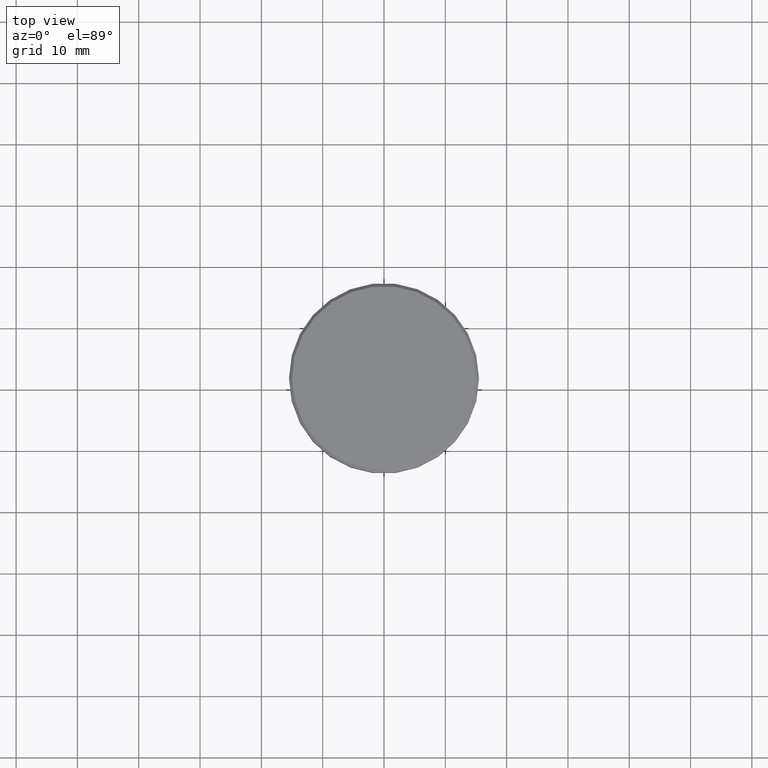
[diagram: clean part render]
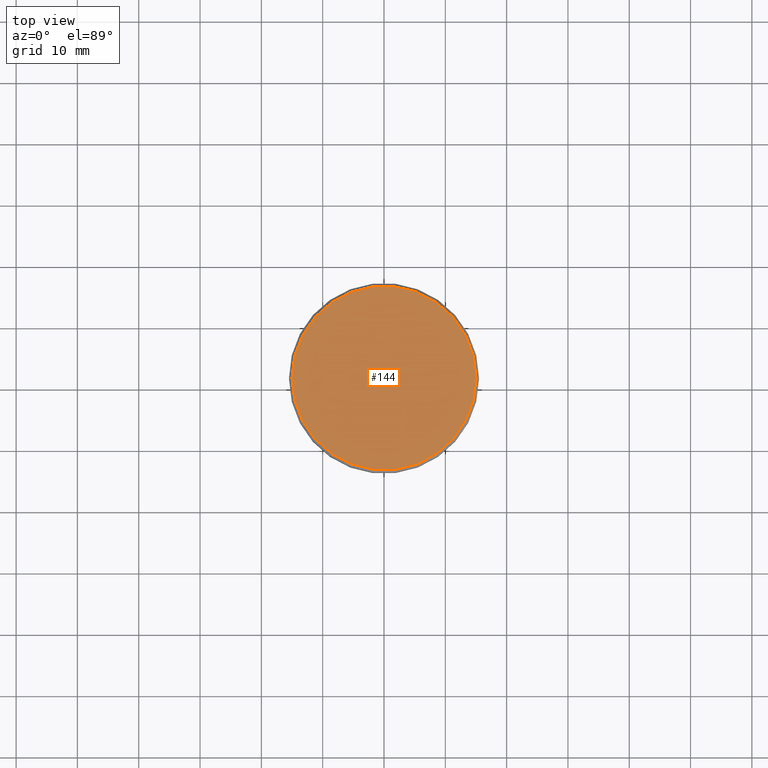
[diagram: same view with one face highlighted and labeled with its STEP entity id]
A machine part, top view. The second image highlights one B-rep face of the part: STEP entity #144.
In plain terms, the highlighted planar face has unit normal (0, -0, 1).
Its self-contained STEP definition (entity closure, byte-faithful):
#17 = EDGE_LOOP ( 'NONE', ( #613, #942 ) ) ;
#68 = EDGE_CURVE ( 'NONE', #198, #879, #966, .T. ) ;
#82 = DIRECTION ( 'NONE',  ( 1.000000000000000000, 0.000000000000000000, 0.000000000000000000 ) ) ;
#144 = ADVANCED_FACE ( 'NONE', ( #254 ), #1070, .T. ) ;
#172 = DIRECTION ( 'NONE',  ( 0.000000000000000000, -0.000000000000000000, 1.000000000000000000 ) ) ;
#198 = VERTEX_POINT ( 'NONE', #531 ) ;
#220 = CARTESIAN_POINT ( 'NONE',  ( 0.000000000000000000, 0.000000000000000000, 0.000000000000000000 ) ) ;
#254 = FACE_OUTER_BOUND ( 'NONE', #17, .T. ) ;
#308 = CARTESIAN_POINT ( 'NONE',  ( 0.000000000000000000, 0.000000000000000000, 0.000000000000000000 ) ) ;
#498 = DIRECTION ( 'NONE',  ( 1.000000000000000000, 0.000000000000000000, 0.000000000000000000 ) ) ;
#531 = CARTESIAN_POINT ( 'NONE',  ( 14.99999999999998579, 1.867586368699712587E-15, 0.000000000000000000 ) ) ;
#532 = AXIS2_PLACEMENT_3D ( 'NONE', #220, #591, #498 ) ;
#590 = CIRCLE ( 'NONE', #661, 14.99999999999998579 ) ;
#591 = DIRECTION ( 'NONE',  ( -0.000000000000000000, -0.000000000000000000, 1.000000000000000000 ) ) ;
#613 = ORIENTED_EDGE ( 'NONE', *, *, #922, .T. ) ;
#661 = AXIS2_PLACEMENT_3D ( 'NONE', #308, #673, #870 ) ;
#673 = DIRECTION ( 'NONE',  ( -0.000000000000000000, -0.000000000000000000, 1.000000000000000000 ) ) ;
#870 = DIRECTION ( 'NONE',  ( 1.000000000000000000, 0.000000000000000000, 0.000000000000000000 ) ) ;
#879 = VERTEX_POINT ( 'NONE', #950 ) ;
#922 = EDGE_CURVE ( 'NONE', #879, #198, #590, .T. ) ;
#933 = AXIS2_PLACEMENT_3D ( 'NONE', #984, #172, #82 ) ;
#942 = ORIENTED_EDGE ( 'NONE', *, *, #68, .T. ) ;
#950 = CARTESIAN_POINT ( 'NONE',  ( -14.99999999999998579, 0.000000000000000000, 0.000000000000000000 ) ) ;
#966 = CIRCLE ( 'NONE', #532, 14.99999999999998579 ) ;
#984 = CARTESIAN_POINT ( 'NONE',  ( 0.000000000000000000, 0.000000000000000000, 0.000000000000000000 ) ) ;
#1070 = PLANE ( 'NONE',  #933 ) ;